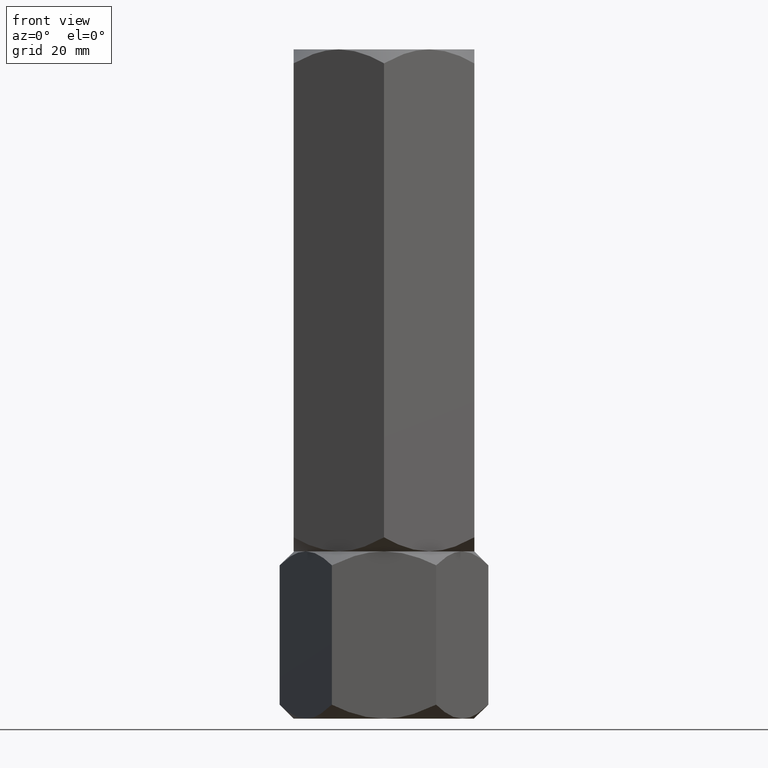
[diagram: clean part render]
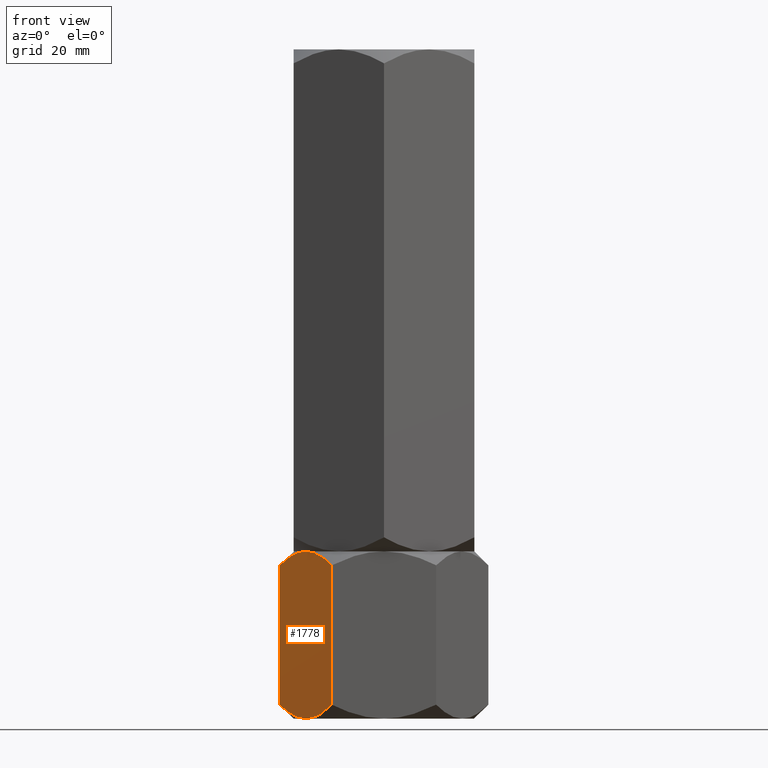
[diagram: same view with one face highlighted and labeled with its STEP entity id]
A machine part, front view. The second image highlights one B-rep face of the part: STEP entity #1778.
In plain terms, the highlighted planar face has unit normal (0.866, 0.5, -0).
Its self-contained STEP definition (entity closure, byte-faithful):
#36 = CARTESIAN_POINT ( 'NONE',  ( -13.77442836864821629, -12.14199022028320307, 0.3405631022552708664 ) ) ;
#44 = CARTESIAN_POINT ( 'NONE',  ( -19.96977770663490759, -1.411330396252050701, 31.36355562669839614 ) ) ;
#45 = LINE ( 'NONE', #499, #488 ) ;
#160 = CARTESIAN_POINT ( 'NONE',  ( -12.04041001437222214, -15.14539811114618750, 1.277383077889871377 ) ) ;
#162 = ORIENTED_EDGE ( 'NONE', *, *, #1733, .F. ) ;
#175 = CARTESIAN_POINT ( 'NONE',  ( -15.81600583360881807, -8.605874323383771340, 33.33333333333330728 ) ) ;
#185 = CARTESIAN_POINT ( 'NONE',  ( -16.72971695024925864, -7.023280245922047804, 33.19461073423471476 ) ) ;
#222 = CARTESIAN_POINT ( 'NONE',  ( -10.39230484541326405, -18.00000000000000355, 30.54872364250677563 ) ) ;
#276 = VERTEX_POINT ( 'NONE', #1254 ) ;
#326 = CARTESIAN_POINT ( 'NONE',  ( -11.20713682960488100, -16.58866960374795951, 1.969777706634903591 ) ) ;
#335 = CARTESIAN_POINT ( 'NONE',  ( -14.44719758599053527, -10.97671975407795486, 0.1387225990985785085 ) ) ;
#364 = DIRECTION ( 'NONE',  ( -0.000000000000000000, -0.000000000000000000, -1.000000000000000000 ) ) ;
#398 = CARTESIAN_POINT ( 'NONE',  ( -19.97072132548310108, -1.409696000463990906, 1.970721325483052233 ) ) ;
#401 = VERTEX_POINT ( 'NONE', #1661 ) ;
#436 = CARTESIAN_POINT ( 'NONE',  ( -20.78460969082652809, -3.746502714695151746E-15, 30.54872364250677919 ) ) ;
#437 = DIRECTION ( 'NONE',  ( 0.8660254037844385966, 0.5000000000000001110, -0.000000000000000000 ) ) ;
#463 = CARTESIAN_POINT ( 'NONE',  ( -15.58845726811989607, -9.000000000000003553, 33.33333333333330017 ) ) ;
#473 = CARTESIAN_POINT ( 'NONE',  ( -10.39230484541326405, -18.00000000000000355, 30.54872364250677563 ) ) ;
#488 = VECTOR ( 'NONE', #1138, 1000.000000000000000 ) ;
#499 = CARTESIAN_POINT ( 'NONE',  ( -20.78460969082652809, -3.512511347539742526E-15, 33.33333333333330017 ) ) ;
#507 = CARTESIAN_POINT ( 'NONE',  ( -15.36090870263097408, -9.394125676616235765, 3.509257500474566305E-15 ) ) ;
#552 = ORIENTED_EDGE ( 'NONE', *, *, #610, .F. ) ;
#579 = CARTESIAN_POINT ( 'NONE',  ( -20.78460969082652809, -3.512511347539742526E-15, 33.33333333333330017 ) ) ;
#610 = EDGE_CURVE ( 'NONE', #276, #1338, #931, .T. ) ;
#625 = VERTEX_POINT ( 'NONE', #2051 ) ;
#664 = EDGE_CURVE ( 'NONE', #981, #276, #1131, .T. ) ;
#668 = CARTESIAN_POINT ( 'NONE',  ( -20.78460969082652809, -3.746502714695151746E-15, 30.54872364250677919 ) ) ;
#709 = CARTESIAN_POINT ( 'NONE',  ( -16.49227650070744389, -7.434539168300462464, 3.445730029430492596E-15 ) ) ;
#710 = B_SPLINE_CURVE_WITH_KNOTS ( 'NONE', 3,
 ( #860, #709, #1806, #1974, #398, #1498 ),
 .UNSPECIFIED., .F., .F.,
 ( 4, 2, 4 ),
 ( 0.01077282027732746894, 0.01612137750481873466, 0.02146993473231000038 ),
 .UNSPECIFIED. ) ;
#729 = CARTESIAN_POINT ( 'NONE',  ( -10.39230484541326227, -18.00000000000000355, 33.33333333333330017 ) ) ;
#796 = CARTESIAN_POINT ( 'NONE',  ( -13.79618737047370125, -12.10430252359947900, 33.05693742621171083 ) ) ;
#834 = CARTESIAN_POINT ( 'NONE',  ( -16.04483044561309768, -8.209538469370130542, 33.31600047685921595 ) ) ;
#860 = CARTESIAN_POINT ( 'NONE',  ( -15.58845726811989607, -9.000000000000003553, 0.000000000000000000 ) ) ;
#886 = LINE ( 'NONE', #729, #1212 ) ;
#906 = DIRECTION ( 'NONE',  ( -0.5000000000000001110, 0.8660254037844385966, 0.000000000000000000 ) ) ;
#931 = B_SPLINE_CURVE_WITH_KNOTS ( 'NONE', 3,
 ( #463, #1066, #796, #2027, #1101, #473 ),
 .UNSPECIFIED., .F., .F.,
 ( 4, 2, 4 ),
 ( 0.01077282027732746894, 0.01612137750481873466, 0.02146993473231000038 ),
 .UNSPECIFIED. ) ;
#980 = CARTESIAN_POINT ( 'NONE',  ( -13.33524813246346952, -12.90267270303528235, 0.5370855558290108522 ) ) ;
#981 = VERTEX_POINT ( 'NONE', #436 ) ;
#994 = CARTESIAN_POINT ( 'NONE',  ( -16.50312530264320543, -7.415748492146457593, 33.24638644321514391 ) ) ;
#1007 = ORIENTED_EDGE ( 'NONE', *, *, #1592, .T. ) ;
#1066 = CARTESIAN_POINT ( 'NONE',  ( -14.68463803553234825, -10.56546083169953754, 33.33333333333330017 ) ) ;
#1099 = CARTESIAN_POINT ( 'NONE',  ( -15.58845726811989607, -9.000000000000003553, 0.000000000000000000 ) ) ;
#1101 = CARTESIAN_POINT ( 'NONE',  ( -11.20619321075668751, -16.59030399953601531, 31.36261200785025238 ) ) ;
#1131 = B_SPLINE_CURVE_WITH_KNOTS ( 'NONE', 3,
 ( #668, #44, #1296, #1288, #1602, #185, #994, #834, #175, #1921 ),
 .UNSPECIFIED., .F., .F.,
 ( 4, 2, 2, 2, 4 ),
 ( 2.544307986817553974E-07, 0.005386537354063076002, 0.008079678815695275074, 0.009426249546511372007, 0.01077282027732746894 ),
 .UNSPECIFIED. ) ;
#1138 = DIRECTION ( 'NONE',  ( -0.000000000000000000, -0.000000000000000000, -1.000000000000000000 ) ) ;
#1212 = VECTOR ( 'NONE', #364, 1000.000000000000000 ) ;
#1254 = CARTESIAN_POINT ( 'NONE',  ( -15.58845726811989607, -9.000000000000003553, 33.33333333333330017 ) ) ;
#1257 = B_SPLINE_CURVE_WITH_KNOTS ( 'NONE', 3,
 ( #1766, #326, #160, #980, #36, #335, #1943, #1913, #507, #1897 ),
 .UNSPECIFIED., .F., .F.,
 ( 4, 2, 2, 2, 4 ),
 ( 2.544307986795061014E-07, 0.005386537354063075135, 0.008079678815695273339, 0.009426249546511372007, 0.01077282027732746894 ),
 .UNSPECIFIED. ) ;
#1288 = CARTESIAN_POINT ( 'NONE',  ( -17.84166640377631552, -5.097327296964722976, 32.79624777750428422 ) ) ;
#1296 = CARTESIAN_POINT ( 'NONE',  ( -19.13650452186756823, -2.854601888853814717, 32.05595025544343457 ) ) ;
#1338 = VERTEX_POINT ( 'NONE', #222 ) ;
#1346 = EDGE_CURVE ( 'NONE', #1772, #625, #710, .T. ) ;
#1405 = FACE_OUTER_BOUND ( 'NONE', #1824, .T. ) ;
#1451 = AXIS2_PLACEMENT_3D ( 'NONE', #579, #437, #906 ) ;
#1498 = CARTESIAN_POINT ( 'NONE',  ( -20.78460969082652809, -3.746502714695151746E-15, 2.784609690826518325 ) ) ;
#1551 = EDGE_CURVE ( 'NONE', #401, #1772, #1257, .T. ) ;
#1592 = EDGE_CURVE ( 'NONE', #981, #625, #45, .T. ) ;
#1596 = ORIENTED_EDGE ( 'NONE', *, *, #1346, .F. ) ;
#1602 = CARTESIAN_POINT ( 'NONE',  ( -17.40248616759157230, -5.858009779716803145, 32.99277023107802620 ) ) ;
#1661 = CARTESIAN_POINT ( 'NONE',  ( -10.39230484541326227, -18.00000000000000355, 2.784609690826521877 ) ) ;
#1727 = PLANE ( 'NONE',  #1451 ) ;
#1733 = EDGE_CURVE ( 'NONE', #1338, #401, #886, .T. ) ;
#1766 = CARTESIAN_POINT ( 'NONE',  ( -10.39230484541326227, -18.00000000000000355, 2.784609690826521877 ) ) ;
#1772 = VERTEX_POINT ( 'NONE', #1099 ) ;
#1778 = ADVANCED_FACE ( 'NONE', ( #1405 ), #1727, .F. ) ;
#1806 = CARTESIAN_POINT ( 'NONE',  ( -17.38072716576608912, -5.895697476400523662, 0.2763959071215840724 ) ) ;
#1824 = EDGE_LOOP ( 'NONE', ( #2002, #1007, #1596, #2026, #162, #552 ) ) ;
#1897 = CARTESIAN_POINT ( 'NONE',  ( -15.58845726811989607, -9.000000000000003553, 0.000000000000000000 ) ) ;
#1913 = CARTESIAN_POINT ( 'NONE',  ( -15.13208409062669624, -9.790461530629878339, 0.01733285647409177344 ) ) ;
#1921 = CARTESIAN_POINT ( 'NONE',  ( -15.58845726811989607, -9.000000000000003553, 33.33333333333330017 ) ) ;
#1943 = CARTESIAN_POINT ( 'NONE',  ( -14.67378923359658316, -10.58425150785354774, 0.08694689011815660840 ) ) ;
#1974 = CARTESIAN_POINT ( 'NONE',  ( -19.13297464765288325, -2.860715810337966403, 1.272574701504241235 ) ) ;
#2002 = ORIENTED_EDGE ( 'NONE', *, *, #664, .F. ) ;
#2026 = ORIENTED_EDGE ( 'NONE', *, *, #1551, .F. ) ;
#2027 = CARTESIAN_POINT ( 'NONE',  ( -12.04393988858690179, -15.13928418966203715, 32.06075863182904584 ) ) ;
#2051 = CARTESIAN_POINT ( 'NONE',  ( -20.78460969082652809, -3.746502714695151746E-15, 2.784609690826518325 ) ) ;